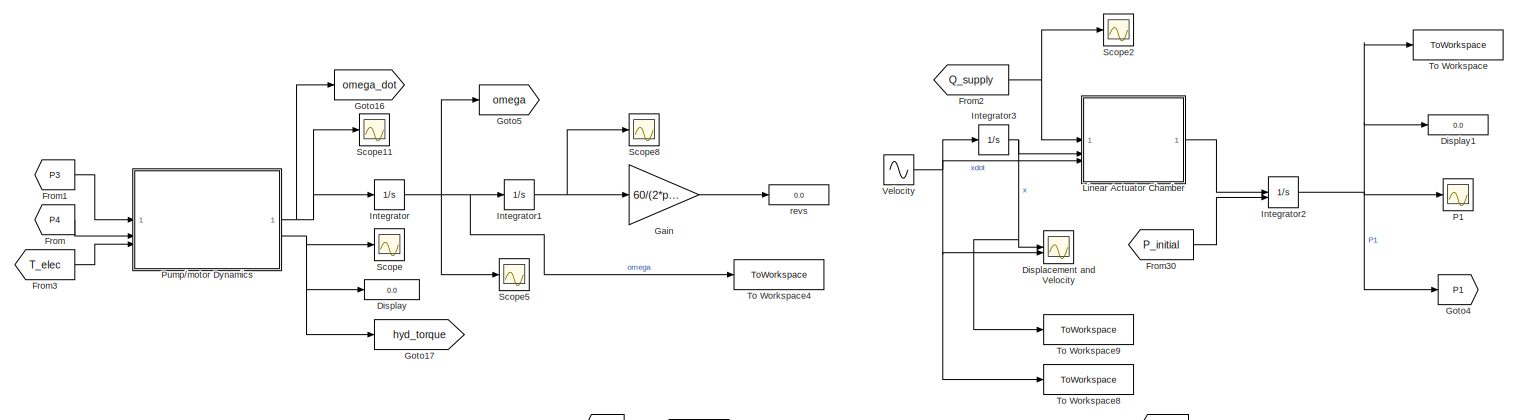
[diagram: root canvas - part 1/4, top center region]
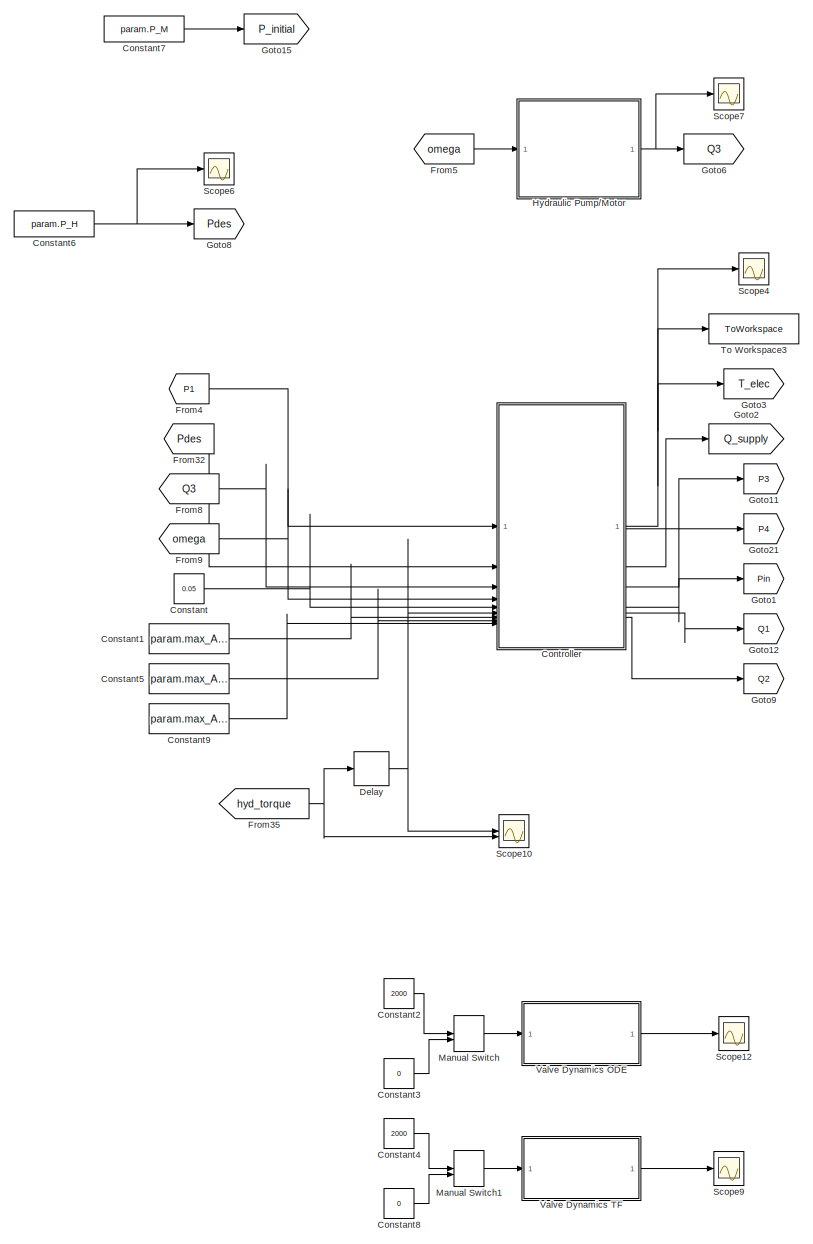
[diagram: root canvas - part 2/4, left side, full height]
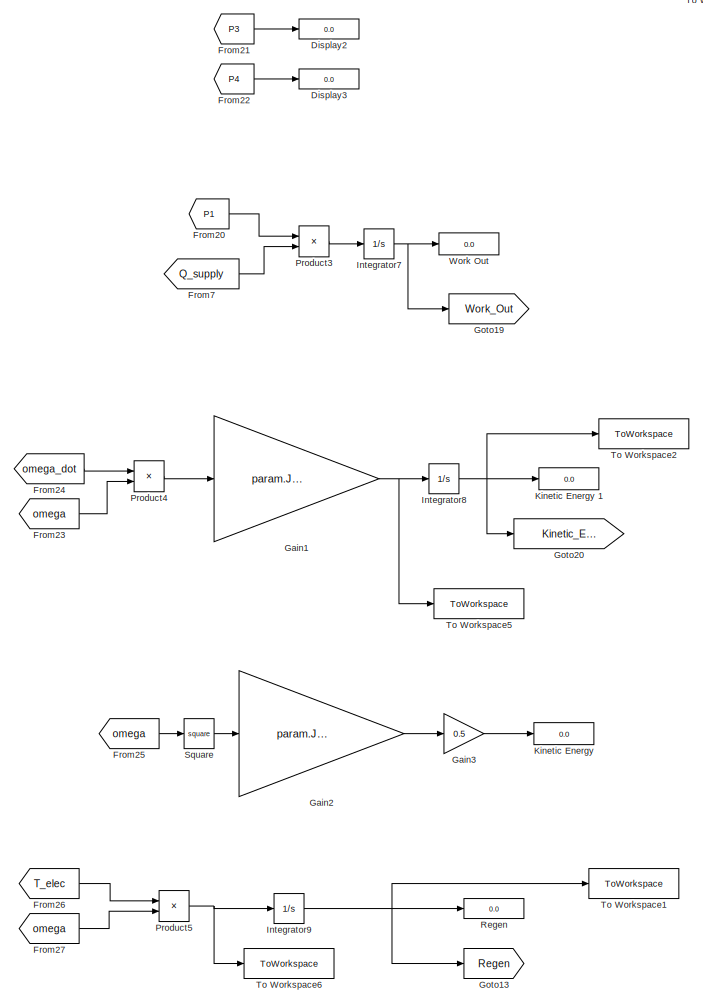
[diagram: root canvas - part 3/4, central region]
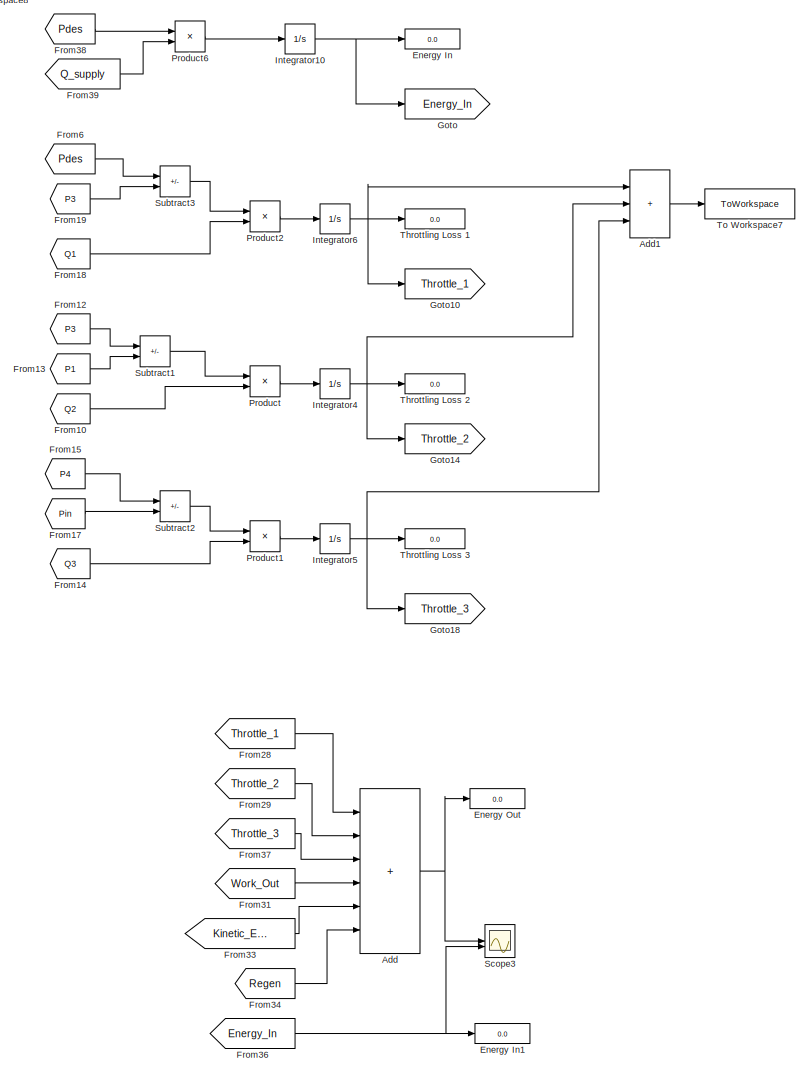
[diagram: root canvas - part 4/4, middle right region]
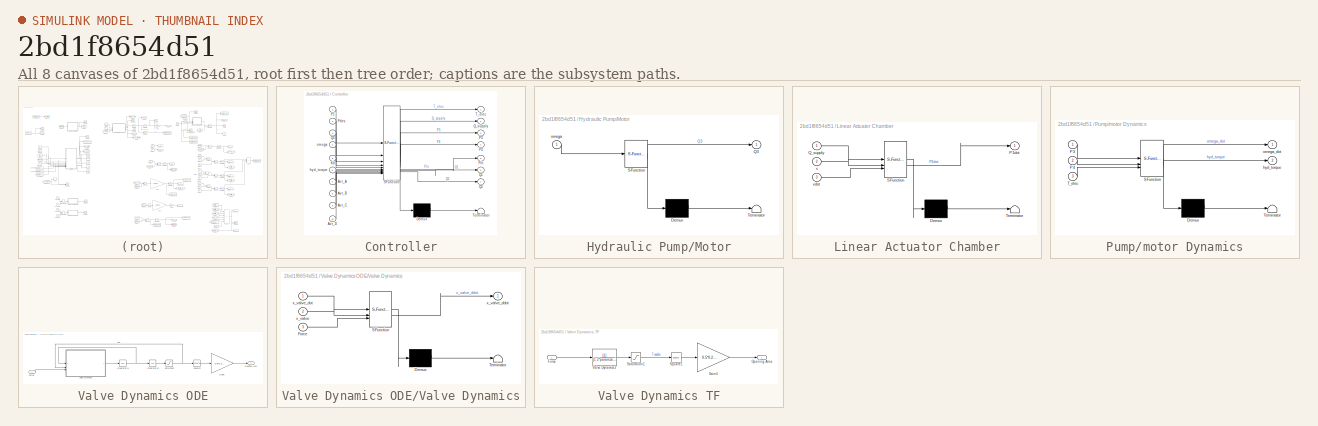
[diagram: thumbnail index - all 8 canvases of the model, root first then tree order]
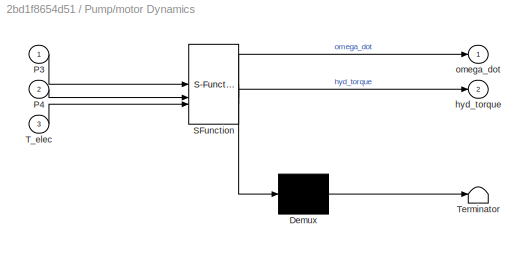
MODEL slx_2bd1f8654d51
KIND model
CONFIG AbsTol = auto
CONFIG EnableMultiTasking = off
CONFIG FixedStep = 1e-7
CONFIG InitFcn = %% Parameters\n\nparam = struct();\n\n% Volume of chambers \nparam.V1_0 = 1e-3;\nparam.V2_0 = 20e-6;\n\n% Pressure rails\nparam.P_H = 20e6;\nparam.P_M = 10e6;\n\n% Valve things\nparam.max_opening = 20e-3;\nparam.max_Avt = 0.5*0.25*pi*(param.max_opening)^2;\nparam.Cd = 0.6;\n\n% Fluid properties\nparam.beta = 1.8e9;\nparam.rho = 870;\n\n% Electric motor stuff\nparam.Kt = 70.5e-3;\nparam.Ke = 70.5e-3;\nparam.J_elec = 1530e...<+228ch>
CONFIG MaxStep = 1e-6
CONFIG MinStep = auto
CONFIG RelTol = 1e-6
CONFIG SampleTimeConstraint = Unconstrained
CONFIG SolverName = ode1
CONFIG StartTime = 0.0
CONFIG StopTime = 0.30
BLOCK [Sum] Add
  IconShape = rectangular
  Inputs = ++++++
BLOCK [Sum] Add1
  IconShape = rectangular
  Inputs = +++
BLOCK [Constant] Constant
  Value = 0.05
BLOCK [Constant] Constant1
  Value = param.max_Avt
BLOCK [Constant] Constant2
  Value = 2000
BLOCK [Constant] Constant3
  Value = 0
BLOCK [Constant] Constant4
  Value = 2000
BLOCK [Constant] Constant5
  Value = param.max_Avt
BLOCK [Constant] Constant6
  Value = param.P_H
BLOCK [Constant] Constant7
  Value = param.P_M
BLOCK [Constant] Constant8
  Value = 0
BLOCK [Constant] Constant9
  Value = param.max_Avt
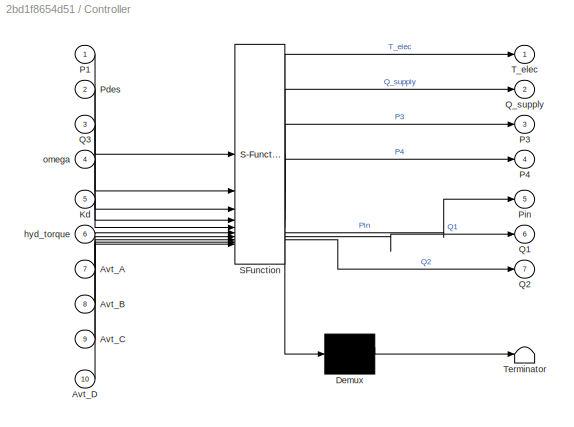
BLOCK [SubSystem] Controller
  ErrorFcn = Stateflow.Translate.translate
  LibrarySourceBlock = simulink/User-Defined\nFunctions/MATLAB Function
  PermitHierarchicalResolution = ExplicitOnly
  SFBlockType = MATLAB Function
  TreatAsAtomicUnit = on
BLOCK [Demux] Controller/ Demux 
  Outputs = 1
BLOCK [S-Function] Controller/ SFunction 
  EnableBusSupport = on
  FunctionName = sf_sfun
  Parameters = param
  PortCounts = [10 8]
  SFcnIsStateOwnerBlock = off
  SFunctionDeploymentMode = off
  Tag = Stateflow S-Function 6
BLOCK [Terminator] Controller/ Terminator 
BLOCK [Inport] Controller/Avt_A
  Port = 7
BLOCK [Inport] Controller/Avt_B
  Port = 8
BLOCK [Inport] Controller/Avt_C
  Port = 9
BLOCK [Inport] Controller/Avt_D
  Port = 10
BLOCK [Inport] Controller/Kd
  Port = 5
BLOCK [Inport] Controller/P1
BLOCK [Outport] Controller/P3
  Port = 3
BLOCK [Outport] Controller/P4
  Port = 4
BLOCK [Inport] Controller/Pdes
  Port = 2
BLOCK [Outport] Controller/Pin
  Port = 5
BLOCK [Outport] Controller/Q1
  Port = 6
BLOCK [Outport] Controller/Q2
  Port = 7
BLOCK [Inport] Controller/Q3
  Port = 3
BLOCK [Outport] Controller/Q_supply
  Port = 2
BLOCK [Outport] Controller/T_elec
BLOCK [Inport] Controller/hyd_torque
  Port = 6
BLOCK [Inport] Controller/omega
  Port = 4
BLOCK [Delay] Delay
  DelayLength = 1
  InputPortMap = u0
BLOCK [Scope] Displacement and Velocity
  Floating = off
  NumInputPorts = 2
  ScopeSpecificationString = Simulink.scopes.TimeScopeBlockCfg('CurrentConfiguration', extmgr.ConfigurationSet(extmgr.Configuration('Core','General UI',true),extmgr.Configuration('Core','Source UI',true),extmgr.Configuration('Sources','WiredSimulink',true,'DataLoggingVariableName','ScopeData2'),extmgr.Configuration('Visuals','Time Domain',true,'SerializedDisplays',{struct('MinYLimReal','-0.0225','MaxYLimReal','0.0025','YLabel...<+1390ch>
BLOCK [Display] Display
  Decimation = 1
BLOCK [Display] Display1
  Decimation = 1
BLOCK [Display] Display2
  Decimation = 1
BLOCK [Display] Display3
  Decimation = 1
BLOCK [Display] Energy In
  Decimation = 1
BLOCK [Display] Energy In1
  Decimation = 1
BLOCK [Display] Energy Out
  Decimation = 1
BLOCK [From] From
  GotoTag = P4
BLOCK [From] From1
  GotoTag = P3
BLOCK [From] From10
  GotoTag = Q2
BLOCK [From] From12
  GotoTag = P3
BLOCK [From] From13
  GotoTag = P1
BLOCK [From] From14
  GotoTag = Q3
BLOCK [From] From15
  GotoTag = P4
BLOCK [From] From17
  GotoTag = Pin
BLOCK [From] From18
  GotoTag = Q1
BLOCK [From] From19
  GotoTag = P3
BLOCK [From] From2
  GotoTag = Q_supply
BLOCK [From] From20
  GotoTag = P1
BLOCK [From] From21
  GotoTag = P3
BLOCK [From] From22
  GotoTag = P4
BLOCK [From] From23
  GotoTag = omega
BLOCK [From] From24
  GotoTag = omega_dot
BLOCK [From] From25
  GotoTag = omega
BLOCK [From] From26
  GotoTag = T_elec
BLOCK [From] From27
  GotoTag = omega
BLOCK [From] From28
  GotoTag = Throttle_1
BLOCK [From] From29
  GotoTag = Throttle_2
BLOCK [From] From3
  GotoTag = T_elec
BLOCK [From] From30
  GotoTag = P_initial
BLOCK [From] From31
  GotoTag = Work_Out
BLOCK [From] From32
  GotoTag = Pdes
BLOCK [From] From33
  GotoTag = Kinetic_Energy
BLOCK [From] From34
  GotoTag = Regen
BLOCK [From] From35
  GotoTag = hyd_torque
BLOCK [From] From36
  GotoTag = Energy_In
BLOCK [From] From37
  GotoTag = Throttle_3
BLOCK [From] From38
  GotoTag = Pdes
BLOCK [From] From39
  GotoTag = Q_supply
BLOCK [From] From4
  GotoTag = P1
BLOCK [From] From5
  GotoTag = omega
BLOCK [From] From6
  GotoTag = Pdes
BLOCK [From] From7
  GotoTag = Q_supply
BLOCK [From] From8
  GotoTag = Q3
BLOCK [From] From9
  GotoTag = omega
BLOCK [Gain] Gain
  Gain = 60/(2*pi)
BLOCK [Gain] Gain1
  Gain = param.J_elec+param.J_hyd
BLOCK [Gain] Gain2
  Gain = param.J_elec+param.J_hyd
BLOCK [Gain] Gain3
  Gain = 0.5
BLOCK [Goto] Goto
  GotoTag = Energy_In
BLOCK [Goto] Goto1
  GotoTag = Pin
BLOCK [Goto] Goto10
  GotoTag = Throttle_1
BLOCK [Goto] Goto11
  GotoTag = P3
BLOCK [Goto] Goto12
  GotoTag = Q1
BLOCK [Goto] Goto13
  GotoTag = Regen
BLOCK [Goto] Goto14
  GotoTag = Throttle_2
BLOCK [Goto] Goto15
  GotoTag = P_initial
BLOCK [Goto] Goto16
  GotoTag = omega_dot
BLOCK [Goto] Goto17
  GotoTag = hyd_torque
BLOCK [Goto] Goto18
  GotoTag = Throttle_3
BLOCK [Goto] Goto19
  GotoTag = Work_Out
BLOCK [Goto] Goto2
  GotoTag = Q_supply
BLOCK [Goto] Goto20
  GotoTag = Kinetic_Energy
BLOCK [Goto] Goto21
  GotoTag = P4
BLOCK [Goto] Goto3
  GotoTag = T_elec
BLOCK [Goto] Goto4
  GotoTag = P1
BLOCK [Goto] Goto5
  GotoTag = omega
BLOCK [Goto] Goto6
  GotoTag = Q3
BLOCK [Goto] Goto8
  GotoTag = Pdes
BLOCK [Goto] Goto9
  GotoTag = Q2
BLOCK [SubSystem] Hydraulic Pump//Motor
  ErrorFcn = Stateflow.Translate.translate
  PermitHierarchicalResolution = ExplicitOnly
  SFBlockType = MATLAB Function
  TreatAsAtomicUnit = on
BLOCK [Demux] Hydraulic Pump//Motor/ Demux 
  Outputs = 1
BLOCK [S-Function] Hydraulic Pump//Motor/ SFunction 
  EnableBusSupport = on
  FunctionName = sf_sfun
  Parameters = param
  PortCounts = [1 2]
  SFcnIsStateOwnerBlock = off
  SFunctionDeploymentMode = off
  Tag = Stateflow S-Function 2
BLOCK [Terminator] Hydraulic Pump//Motor/ Terminator 
BLOCK [Outport] Hydraulic Pump//Motor/Q3
BLOCK [Inport] Hydraulic Pump//Motor/omega
BLOCK [Integrator] Integrator
BLOCK [Integrator] Integrator1
BLOCK [Integrator] Integrator10
BLOCK [Integrator] Integrator2
  InitialCondition = param.P_M
  InitialConditionSource = external
BLOCK [Integrator] Integrator3
BLOCK [Integrator] Integrator4
BLOCK [Integrator] Integrator5
BLOCK [Integrator] Integrator6
BLOCK [Integrator] Integrator7
BLOCK [Integrator] Integrator8
BLOCK [Integrator] Integrator9
BLOCK [Display] Kinetic Energy
  Decimation = 1
BLOCK [Display] Kinetic Energy 1
  Decimation = 1
BLOCK [SubSystem] Linear Actuator Chamber
  ErrorFcn = Stateflow.Translate.translate
  PermitHierarchicalResolution = ExplicitOnly
  SFBlockType = MATLAB Function
  TreatAsAtomicUnit = on
BLOCK [Demux] Linear Actuator Chamber/ Demux 
  Outputs = 1
BLOCK [S-Function] Linear Actuator Chamber/ SFunction 
  EnableBusSupport = on
  FunctionName = sf_sfun
  Parameters = param
  PortCounts = [3 2]
  SFcnIsStateOwnerBlock = off
  SFunctionDeploymentMode = off
  Tag = Stateflow S-Function 5
BLOCK [Terminator] Linear Actuator Chamber/ Terminator 
BLOCK [Outport] Linear Actuator Chamber/P1dot
BLOCK [Inport] Linear Actuator Chamber/Q_supply
BLOCK [Inport] Linear Actuator Chamber/x
  Port = 2
BLOCK [Inport] Linear Actuator Chamber/xdot
  Port = 3
BLOCK [ManualSwitch] Manual Switch
  CurrentSetting = 0
BLOCK [ManualSwitch] Manual Switch1
  CurrentSetting = 0
BLOCK [Scope] P1
  Floating = off
  NumInputPorts = 1
  ScopeSpecificationString = Simulink.scopes.TimeScopeBlockCfg('CurrentConfiguration', extmgr.ConfigurationSet(extmgr.Configuration('Core','General UI',true),extmgr.Configuration('Core','Source UI',true),extmgr.Configuration('Sources','WiredSimulink',true,'DataLoggingVariableName','ScopeData1'),extmgr.Configuration('Visuals','Time Domain',true,'SerializedDisplays',{struct('MinYLimReal','8184560.72103','MaxYLimReal','21313708....<+1486ch>
BLOCK [Product] Product
BLOCK [Product] Product1
BLOCK [Product] Product2
BLOCK [Product] Product3
BLOCK [Product] Product4
BLOCK [Product] Product5
BLOCK [Product] Product6
BLOCK [SubSystem] Pump//motor Dynamics
  ErrorFcn = Stateflow.Translate.translate
  PermitHierarchicalResolution = ExplicitOnly
  SFBlockType = MATLAB Function
  TreatAsAtomicUnit = on
BLOCK [Demux] Pump//motor Dynamics/ Demux 
  Outputs = 1
BLOCK [S-Function] Pump//motor Dynamics/ SFunction 
  EnableBusSupport = on
  FunctionName = sf_sfun
  Parameters = param
  PortCounts = [3 3]
  SFcnIsStateOwnerBlock = off
  SFunctionDeploymentMode = off
  Tag = Stateflow S-Function 1
BLOCK [Terminator] Pump//motor Dynamics/ Terminator 
BLOCK [Inport] Pump//motor Dynamics/P3
BLOCK [Inport] Pump//motor Dynamics/P4
  Port = 2
BLOCK [Inport] Pump//motor Dynamics/T_elec
  Port = 3
BLOCK [Outport] Pump//motor Dynamics/hyd_torque
  Port = 2
BLOCK [Outport] Pump//motor Dynamics/omega_dot
BLOCK [Display] Regen
  Decimation = 1
BLOCK [Scope] Scope
  Floating = off
  NumInputPorts = 1
  ScopeSpecificationString = Simulink.scopes.TimeScopeBlockCfg('CurrentConfiguration', extmgr.ConfigurationSet(extmgr.Configuration('Core','General UI',true),extmgr.Configuration('Core','Source UI',true),extmgr.Configuration('Sources','WiredSimulink',true,'DataLoggingVariableName','ScopeData1'),extmgr.Configuration('Visuals','Time Domain',true,'SerializedDisplays',{struct('MinYLimReal','-0.000036','MaxYLimReal','0.00003','YLa...<+1445ch>
BLOCK [Scope] Scope10
  Floating = off
  NumInputPorts = 2
  ScopeSpecificationString = Simulink.scopes.TimeScopeBlockCfg('CurrentConfiguration', extmgr.ConfigurationSet(extmgr.Configuration('Core','General UI',true),extmgr.Configuration('Core','Source UI',true),extmgr.Configuration('Sources','WiredSimulink',true,'DataLoggingVariableName','ScopeData3'),extmgr.Configuration('Visuals','Time Domain',true,'SerializedDisplays',{struct('MinYLimReal','2.4254','MaxYLimReal','2.42735','YLabel...<+1420ch>
BLOCK [Scope] Scope11
  Floating = off
  NumInputPorts = 1
  ScopeSpecificationString = Simulink.scopes.TimeScopeBlockCfg('CurrentConfiguration', extmgr.ConfigurationSet(extmgr.Configuration('Core','General UI',true),extmgr.Configuration('Core','Source UI',true),extmgr.Configuration('Sources','WiredSimulink',true,'DataLoggingVariableName','ScopeData4'),extmgr.Configuration('Visuals','Time Domain',true,'SerializedDisplays',{struct('MinYLimReal','-83484.48929','MaxYLimReal','89105.5345...<+1446ch>
BLOCK [Scope] Scope12
  Floating = off
  NumInputPorts = 1
  ScopeSpecificationString = Simulink.scopes.TimeScopeBlockCfg('CurrentConfiguration', extmgr.ConfigurationSet(extmgr.Configuration('Core','General UI',true),extmgr.Configuration('Core','Source UI',true),extmgr.Configuration('Sources','WiredSimulink',true,'DataLoggingVariableName','ScopeData2'),extmgr.Configuration('Visuals','Time Domain',true,'SerializedDisplays',{struct('MinYLimReal','-0.00002','MaxYLimReal','0.00018','YLab...<+1404ch>
BLOCK [Scope] Scope2
  Floating = off
  NumInputPorts = 1
  ScopeSpecificationString = Simulink.scopes.TimeScopeBlockCfg('CurrentConfiguration', extmgr.ConfigurationSet(extmgr.Configuration('Core','General UI',true),extmgr.Configuration('Core','Source UI',true),extmgr.Configuration('Sources','WiredSimulink',true,'DataLoggingVariableName','ScopeData2'),extmgr.Configuration('Visuals','Time Domain',true,'SerializedDisplays',{struct('MinYLimReal','-0.00003','MaxYLimReal','0.00023','YLab...<+1441ch>
BLOCK [Scope] Scope3
  Floating = off
  NumInputPorts = 2
  ScopeSpecificationString = Simulink.scopes.TimeScopeBlockCfg('CurrentConfiguration', extmgr.ConfigurationSet(extmgr.Configuration('Core','General UI',true),extmgr.Configuration('Core','Source UI',true),extmgr.Configuration('Sources','WiredSimulink',true,'DataLoggingVariableName','ScopeData1'),extmgr.Configuration('Visuals','Time Domain',true,'SerializedDisplays',{struct('MinYLimReal','-13.87504','MaxYLimReal','124.87533','Y...<+1414ch>
BLOCK [Scope] Scope4
  Floating = off
  NumInputPorts = 1
  ScopeSpecificationString = Simulink.scopes.TimeScopeBlockCfg('CurrentConfiguration', extmgr.ConfigurationSet(extmgr.Configuration('Core','General UI',true),extmgr.Configuration('Core','Source UI',true),extmgr.Configuration('Sources','WiredSimulink',true,'DataLoggingVariableName','ScopeData1'),extmgr.Configuration('Visuals','Time Domain',true,'SerializedDisplays',{struct('MinYLimReal','-37.5','MaxYLimReal','37.5','YLabelReal...<+1408ch>
BLOCK [Scope] Scope5
  Floating = off
  NumInputPorts = 1
  ScopeSpecificationString = Simulink.scopes.TimeScopeBlockCfg('CurrentConfiguration', extmgr.ConfigurationSet(extmgr.Configuration('Core','General UI',true),extmgr.Configuration('Core','Source UI',true),extmgr.Configuration('Sources','WiredSimulink',true,'DataLoggingVariableName','ScopeData2'),extmgr.Configuration('Visuals','Time Domain',true,'SerializedDisplays',{struct('MinYLimReal','-37.5027','MaxYLimReal','337.50623','YL...<+1400ch>
BLOCK [Scope] Scope6
  Floating = off
  NumInputPorts = 1
  ScopeSpecificationString = Simulink.scopes.TimeScopeBlockCfg('CurrentConfiguration', extmgr.ConfigurationSet(extmgr.Configuration('Core','General UI',true),extmgr.Configuration('Core','Source UI',true),extmgr.Configuration('Sources','WiredSimulink',true,'DataLoggingVariableName','ScopeData3'),extmgr.Configuration('Visuals','Time Domain',true,'SerializedDisplays',{struct('MinYLimReal','10000000.00000','MaxYLimReal','30000000...<+1492ch>
BLOCK [Scope] Scope7
  Floating = off
  NumInputPorts = 1
  ScopeSpecificationString = Simulink.scopes.TimeScopeBlockCfg('CurrentConfiguration', extmgr.ConfigurationSet(extmgr.Configuration('Core','General UI',true),extmgr.Configuration('Core','Source UI',true),extmgr.Configuration('Sources','WiredSimulink',true,'DataLoggingVariableName','ScopeData1'),extmgr.Configuration('Visuals','Time Domain',true,'SerializedDisplays',{struct('MinYLimReal','-0.00001','MaxYLimReal','0.000086','YLa...<+1416ch>
BLOCK [Scope] Scope8
  Floating = off
  NumInputPorts = 1
  ScopeSpecificationString = Simulink.scopes.TimeScopeBlockCfg('CurrentConfiguration', extmgr.ConfigurationSet(extmgr.Configuration('Core','General UI',true),extmgr.Configuration('Core','Source UI',true),extmgr.Configuration('Sources','WiredSimulink',true,'DataLoggingVariableName','ScopeData1'),extmgr.Configuration('Visuals','Time Domain',true,'SerializedDisplays',{struct('MinYLimReal','-3.05451','MaxYLimReal','27.49059','YLa...<+1421ch>
BLOCK [Scope] Scope9
  Floating = off
  NumInputPorts = 1
  ScopeSpecificationString = Simulink.scopes.TimeScopeBlockCfg('CurrentConfiguration', extmgr.ConfigurationSet(extmgr.Configuration('Core','General UI',true),extmgr.Configuration('Core','Source UI',true),extmgr.Configuration('Sources','WiredSimulink',true,'DataLoggingVariableName','ScopeData1'),extmgr.Configuration('Visuals','Time Domain',true,'SerializedDisplays',{struct('MinYLimReal','-1.00000','MaxYLimReal','1.00000','YLab...<+1404ch>
BLOCK [Math] Square
  Operator = square
BLOCK [Sum] Subtract1
  IconShape = rectangular
  Inputs = +-
BLOCK [Sum] Subtract2
  IconShape = rectangular
  Inputs = +-
BLOCK [Sum] Subtract3
  IconShape = rectangular
  Inputs = +-
BLOCK [Display] Throttling Loss 1
  Decimation = 1
BLOCK [Display] Throttling Loss 2
  Decimation = 1
BLOCK [Display] Throttling Loss 3
  Decimation = 1
BLOCK [ToWorkspace] To Workspace
  FixptAsFi = on
  MaxDataPoints = inf
  SampleTime = -1
  SaveFormat = Timeseries
  VariableName = P1
BLOCK [ToWorkspace] To Workspace1
  FixptAsFi = on
  MaxDataPoints = inf
  SampleTime = -1
  SaveFormat = Timeseries
  VariableName = Regen
BLOCK [ToWorkspace] To Workspace2
  FixptAsFi = on
  MaxDataPoints = inf
  SampleTime = -1
  SaveFormat = Timeseries
  VariableName = KE
BLOCK [ToWorkspace] To Workspace3
  FixptAsFi = on
  MaxDataPoints = inf
  SampleTime = -1
  SaveFormat = Timeseries
  VariableName = T_elec
BLOCK [ToWorkspace] To Workspace4
  FixptAsFi = on
  MaxDataPoints = inf
  SampleTime = -1
  SaveFormat = Timeseries
  VariableName = omega
BLOCK [ToWorkspace] To Workspace5
  FixptAsFi = on
  MaxDataPoints = inf
  SampleTime = -1
  SaveFormat = Timeseries
  VariableName = KE_power
BLOCK [ToWorkspace] To Workspace6
  FixptAsFi = on
  MaxDataPoints = inf
  SampleTime = -1
  SaveFormat = Timeseries
  VariableName = Regen_power
BLOCK [ToWorkspace] To Workspace7
  FixptAsFi = on
  MaxDataPoints = inf
  SampleTime = -1
  SaveFormat = Timeseries
  VariableName = Losses
BLOCK [ToWorkspace] To Workspace8
  FixptAsFi = on
  MaxDataPoints = inf
  SampleTime = -1
  SaveFormat = Timeseries
  VariableName = xdot
BLOCK [ToWorkspace] To Workspace9
  FixptAsFi = on
  MaxDataPoints = inf
  SampleTime = -1
  SaveFormat = Timeseries
  VariableName = x
BLOCK [SubSystem] Valve Dynamics ODE
BLOCK [Inport] Valve Dynamics ODE/Force
BLOCK [Gain] Valve Dynamics ODE/Gain5
  Gain = 0.5*0.25*pi
BLOCK [Integrator] Valve Dynamics ODE/Integrator11
BLOCK [Integrator] Valve Dynamics ODE/Integrator12
BLOCK [Outport] Valve Dynamics ODE/Opening Area
BLOCK [Saturate] Valve Dynamics ODE/Saturation
  LowerLimit = 0
  UpperLimit = param.max_opening
BLOCK [Math] Valve Dynamics ODE/Square2
  Operator = square
BLOCK [SubSystem] Valve Dynamics ODE/Valve Dynamics
  ErrorFcn = Stateflow.Translate.translate
  LibrarySourceBlock = simulink/User-Defined\nFunctions/MATLAB Function
  PermitHierarchicalResolution = ExplicitOnly
  SFBlockType = MATLAB Function
  TreatAsAtomicUnit = on
BLOCK [Demux] Valve Dynamics ODE/Valve Dynamics/ Demux 
  Outputs = 1
BLOCK [S-Function] Valve Dynamics ODE/Valve Dynamics/ SFunction 
  EnableBusSupport = on
  FunctionName = sf_sfun
  Parameters = param
  PortCounts = [3 2]
  SFcnIsStateOwnerBlock = off
  SFunctionDeploymentMode = off
  Tag = Stateflow S-Function 3
BLOCK [Terminator] Valve Dynamics ODE/Valve Dynamics/ Terminator 
BLOCK [Inport] Valve Dynamics ODE/Valve Dynamics/Force
  Port = 3
BLOCK [Inport] Valve Dynamics ODE/Valve Dynamics/x_valve
  Port = 2
BLOCK [Outport] Valve Dynamics ODE/Valve Dynamics/x_valve_ddot
BLOCK [Inport] Valve Dynamics ODE/Valve Dynamics/x_valve_dot
BLOCK [SubSystem] Valve Dynamics TF
BLOCK [Inport] Valve Dynamics TF/Force
BLOCK [Gain] Valve Dynamics TF/Gain4
  Gain = 0.5*0.25*pi
BLOCK [Outport] Valve Dynamics TF/Opening Area
BLOCK [Saturate] Valve Dynamics TF/Saturation1
  LowerLimit = 0
  UpperLimit = param.max_opening
BLOCK [Math] Valve Dynamics TF/Square1
  Operator = square
BLOCK [TransferFcn] Valve Dynamics TF/Valve Dynamics 2
  Denominator = [1 2*param.zeta*param.wn, param.wn^2]
BLOCK [Sin] Velocity
  Amplitude = 1e-2
  Frequency = (2*pi)/0.3
  Phase = pi/2
  SampleTime = 0
BLOCK [Display] Work Out
  Decimation = 1
BLOCK [Display] revs
  Decimation = 1
LINE Add1:1 -> To Workspace7:1
NET Add:1 -> Energy Out:1, Scope3:1
LINE Constant1:1 -> Controller:7
LINE Constant2:1 -> Manual Switch:1
LINE Constant3:1 -> Manual Switch:2
LINE Constant4:1 -> Manual Switch1:1
LINE Constant5:1 -> Controller:8
NET Constant6:1 -> Goto8:1, Scope6:1
LINE Constant7:1 -> Goto15:1
LINE Constant8:1 -> Manual Switch1:2
LINE Constant9:1 -> Controller:9
LINE Constant:1 -> Controller:5
NET Controller:1 -> Goto3:1, Scope4:1, To Workspace3:1
LINE Controller:2 -> Goto2:1
LINE Controller:3 -> Goto11:1
LINE Controller:4 -> Goto21:1
LINE Controller:5 -> Goto1:1
LINE Controller:6 -> Goto12:1
LINE Controller:7 -> Goto9:1
NET Delay:1 -> Controller:6, Scope10:1
LINE From10:1 -> Product:2
LINE From12:1 -> Subtract1:1
LINE From13:1 -> Subtract1:2
LINE From14:1 -> Product1:2
LINE From15:1 -> Subtract2:1
LINE From17:1 -> Subtract2:2
LINE From18:1 -> Product2:2
LINE From19:1 -> Subtract3:2
LINE From1:1 -> Pump//motor Dynamics:1
LINE From20:1 -> Product3:1
LINE From21:1 -> Display2:1
LINE From22:1 -> Display3:1
LINE From23:1 -> Product4:2
LINE From24:1 -> Product4:1
LINE From25:1 -> Square:1
LINE From26:1 -> Product5:1
LINE From27:1 -> Product5:2
LINE From28:1 -> Add:1
LINE From29:1 -> Add:2
NET From2:1 -> Linear Actuator Chamber:1, Scope2:1
LINE From30:1 -> Integrator2:2
LINE From31:1 -> Add:4
LINE From32:1 -> Controller:2
LINE From33:1 -> Add:5
LINE From34:1 -> Add:6
NET From35:1 -> Delay:1, Scope10:2
NET From36:1 -> Energy In1:1, Scope3:2
LINE From37:1 -> Add:3
LINE From38:1 -> Product6:1
LINE From39:1 -> Product6:2
LINE From3:1 -> Pump//motor Dynamics:3
LINE From4:1 -> Controller:1
LINE From5:1 -> Hydraulic Pump//Motor:1
LINE From6:1 -> Subtract3:1
LINE From7:1 -> Product3:2
LINE From8:1 -> Controller:3
LINE From9:1 -> Controller:4
LINE From:1 -> Pump//motor Dynamics:2
NET Gain1:1 -> Integrator8:1, To Workspace5:1
LINE Gain2:1 -> Gain3:1
LINE Gain3:1 -> Kinetic Energy:1
LINE Gain:1 -> revs:1
NET Hydraulic Pump//Motor:1 -> Goto6:1, Scope7:1
NET Integrator10:1 -> Energy In:1, Goto:1
NET Integrator1:1 -> Gain:1, Scope8:1
NET Integrator2:1 -> Display1:1, Goto4:1, P1:1, To Workspace:1
NET Integrator3:1 -> Displacement and Velocity:1, Linear Actuator Chamber:2, To Workspace9:1
NET Integrator4:1 -> Add1:2, Goto14:1, Throttling Loss 2:1
NET Integrator5:1 -> Add1:3, Goto18:1, Throttling Loss 3:1
NET Integrator6:1 -> Add1:1, Goto10:1, Throttling Loss 1:1
NET Integrator7:1 -> Goto19:1, Work Out:1
NET Integrator8:1 -> Goto20:1, Kinetic Energy 1:1, To Workspace2:1
NET Integrator9:1 -> Goto13:1, Regen:1, To Workspace1:1
NET Integrator:1 -> Goto5:1, Integrator1:1, Scope5:1, To Workspace4:1
LINE Linear Actuator Chamber:1 -> Integrator2:1
LINE Manual Switch1:1 -> Valve Dynamics TF:1
LINE Manual Switch:1 -> Valve Dynamics ODE:1
LINE Product1:1 -> Integrator5:1
LINE Product2:1 -> Integrator6:1
LINE Product3:1 -> Integrator7:1
LINE Product4:1 -> Gain1:1
NET Product5:1 -> Integrator9:1, To Workspace6:1
LINE Product6:1 -> Integrator10:1
LINE Product:1 -> Integrator4:1
NET Pump//motor Dynamics:1 -> Goto16:1, Integrator:1, Scope11:1
NET Pump//motor Dynamics:2 -> Display:1, Goto17:1, Scope:1
LINE Square:1 -> Gain2:1
LINE Subtract1:1 -> Product:1
LINE Subtract2:1 -> Product1:1
LINE Subtract3:1 -> Product2:1
LINE Valve Dynamics ODE/Force:1 -> Valve Dynamics ODE/Valve Dynamics:3
LINE Valve Dynamics ODE/Gain5:1 -> Valve Dynamics ODE/Opening Area:1
NET Valve Dynamics ODE/Integrator11:1 -> Valve Dynamics ODE/Integrator12:1, Valve Dynamics ODE/Valve Dynamics:1
LINE Valve Dynamics ODE/Integrator12:1 -> Valve Dynamics ODE/Saturation:1
NET Valve Dynamics ODE/Saturation:1 -> Valve Dynamics ODE/Square2:1, Valve Dynamics ODE/Valve Dynamics:2
LINE Valve Dynamics ODE/Square2:1 -> Valve Dynamics ODE/Gain5:1
LINE Valve Dynamics ODE/Valve Dynamics:1 -> Valve Dynamics ODE/Integrator11:1
LINE Valve Dynamics ODE:1 -> Scope12:1
LINE Valve Dynamics TF/Force:1 -> Valve Dynamics TF/Valve Dynamics 2:1
LINE Valve Dynamics TF/Gain4:1 -> Valve Dynamics TF/Opening Area:1
LINE Valve Dynamics TF/Saturation1:1 -> Valve Dynamics TF/Square1:1
LINE Valve Dynamics TF/Square1:1 -> Valve Dynamics TF/Gain4:1
LINE Valve Dynamics TF/Valve Dynamics 2:1 -> Valve Dynamics TF/Saturation1:1
LINE Valve Dynamics TF:1 -> Scope9:1
NET Velocity:1 -> Displacement and Velocity:2, Integrator3:1, Linear Actuator Chamber:3, To Workspace8:1
note: NET lines group one-source signal fan-out (src -> all destinations, sorted); 1:1 wires keep LINE
CHART Pump//motor Dynamics states=1 transitions=1
  STATE_LABEL 'eML_blk_kernel()'
  STATE_LABEL 'SCRIPT:\nfunction [omega_dot, hyd_torque] = fcn(P3, P4, param, T_elec)\n\nhyd_torque = (param.hyd_D/(2*pi))*(P3-P4);\nomega_dot = (1/(param.J_elec+param.J_hyd))*(hyd_torque - T_elec);\n'
CHART Hydraulic Pump//Motor states=1 transitions=1
  STATE_LABEL 'eML_blk_kernel()'
  STATE_LABEL 'SCRIPT:\nfunction Q3   = fcn(omega, param)\n\nQ3 = (param.hyd_D/(2*pi))*omega;\n'
CHART Valve Dynamics ODE/Valve Dynamics states=1 transitions=1
  STATE_LABEL 'eML_blk_kernel()'
  STATE_LABEL 'SCRIPT:\nfunction x_valve_ddot = fcn(param, x_valve_dot, x_valve, Force)\n\nx_valve_ddot = -2*param.zeta*param.wn*x_valve_dot - param.wn^2*x_valve + Force;\n'
CHART Linear Actuator Chamber states=1 transitions=1
  STATE_LABEL 'eML_blk_kernel()'
  STATE_LABEL 'SCRIPT:\nfunction P1dot = fcn(Q_supply, param, x, xdot)\n\nP1dot = (param.beta/(param.V1_0+param.Acap*x))*(Q_supply-param.Acap*xdot);\n'
CHART Controller states=1 transitions=1
  STATE_LABEL 'eML_blk_kernel()'
  STATE_LABEL 'SCRIPT:\nfunction [T_elec, Q_supply, P3, P4, Pin, Q1, Q2] = fcn(P1, Pdes, Q3, omega, Kd, param, hyd_torque, Avt_A, Avt_B, Avt_C, Avt_D)\n\nk_A = param.Cd*Avt_A*sqrt(2/param.rho);\nk_B = param.Cd*Avt_B*sqrt(2/param.rho);\nk_C = param.Cd*Avt_C*sqrt(2/param.rho);\n% k_D = param.Cd*Avt_D*sqrt(2/param.rho);\n\nif abs(P1-Pdes)<1e4 \n\n    % Phase 2\n    \n    sigma2 = k_A^2+k_B^2;\n    sigma1 = sqrt(abs((Pdes-P1)*(s...<+752ch>'
CHART  states=0 transitions=0
CHART  states=0 transitions=0
CHART  states=0 transitions=0
CHART  states=0 transitions=0
CHART  states=0 transitions=0
